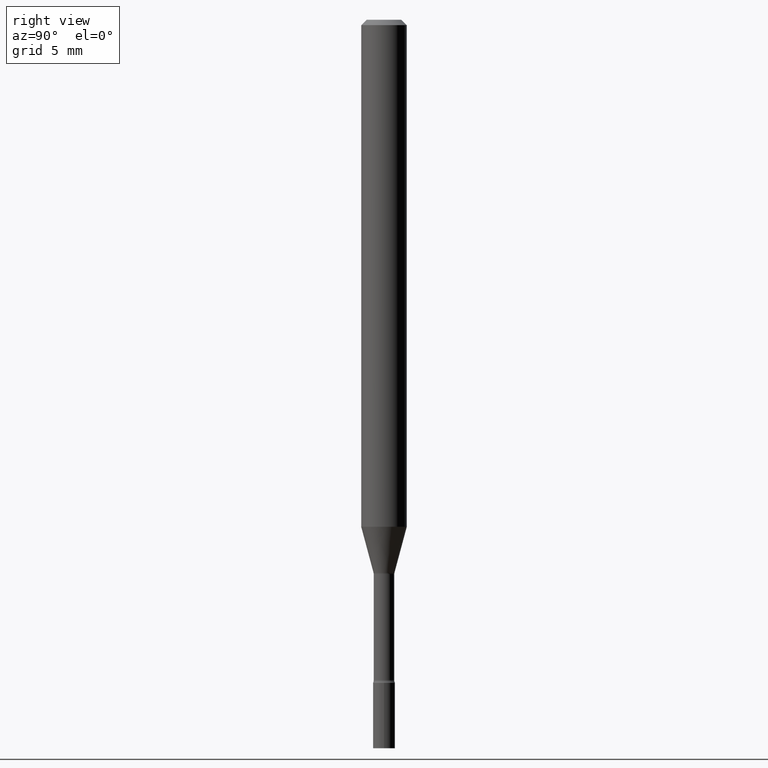
[diagram: clean part render]
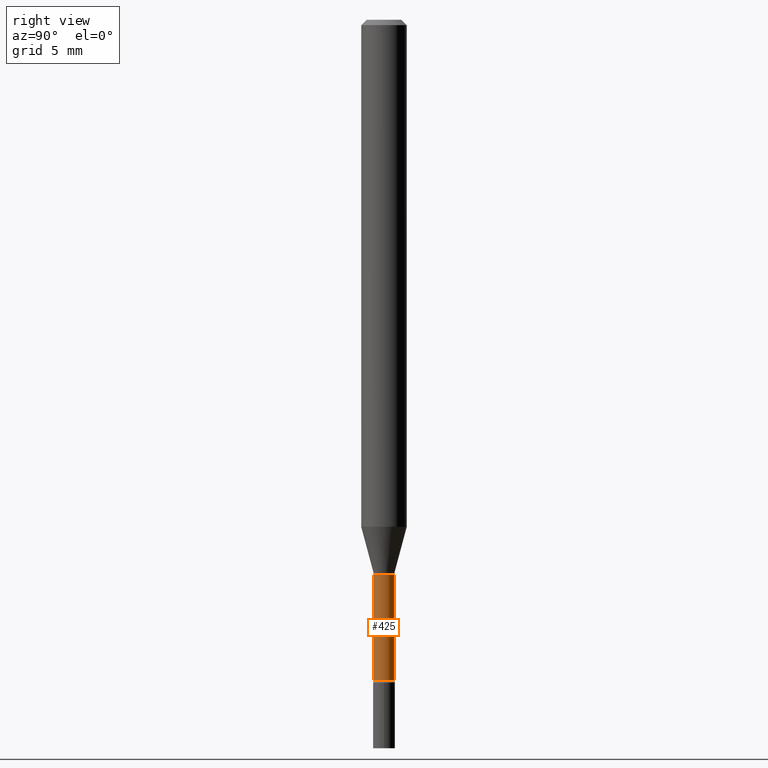
[diagram: same view with one face highlighted and labeled with its STEP entity id]
A machine part, right view. The second image highlights one B-rep face of the part: STEP entity #425.
In plain terms, the highlighted cylindrical surface (edge-blend (fillet) strip) has radius 0.7163 mm, axis along (-0, 0, 1).
Its self-contained STEP definition (entity closure, byte-faithful):
#24 = ORIENTED_EDGE ( 'NONE', *, *, #405, .F. ) ;
#45 = VERTEX_POINT ( 'NONE', #487 ) ;
#89 = ORIENTED_EDGE ( 'NONE', *, *, #368, .T. ) ;
#96 = CIRCLE ( 'NONE', #474, 0.02819999999999994733 ) ;
#116 = CARTESIAN_POINT ( 'NONE',  ( 0.000000000000000000, 0.000000000000000000, 0.000000000000000000 ) ) ;
#118 = DIRECTION ( 'NONE',  ( -2.445383222874086491E-29, 3.491603899015669090E-15, 1.000000000000000000 ) ) ;
#156 = VERTEX_POINT ( 'NONE', #466 ) ;
#160 = FACE_OUTER_BOUND ( 'NONE', #217, .T. ) ;
#169 = DIRECTION ( 'NONE',  ( -2.445383222874086211E-29, 3.491603899015669090E-15, 1.000000000000000000 ) ) ;
#196 = LINE ( 'NONE', #363, #276 ) ;
#203 = CARTESIAN_POINT ( 'NONE',  ( 2.003730514843925967E-16, 0.02819999999999468418, -1.521974787463810985 ) ) ;
#217 = EDGE_LOOP ( 'NONE', ( #409, #89, #345, #24 ) ) ;
#233 = CARTESIAN_POINT ( 'NONE',  ( 4.433175075477450519E-29, -6.329842796730908159E-15, -1.812875394747776925 ) ) ;
#276 = VECTOR ( 'NONE', #169, 39.37007874015748143 ) ;
#279 = DIRECTION ( 'NONE',  ( -2.445383222874086491E-29, 3.491603899015669090E-15, 1.000000000000000000 ) ) ;
#320 = CYLINDRICAL_SURFACE ( 'NONE', #380, 0.02819999999999997162 ) ;
#322 = CARTESIAN_POINT ( 'NONE',  ( 2.003730514843480261E-16, 0.02819999999999997162, -9.846322995224176842E-17 ) ) ;
#323 = VERTEX_POINT ( 'NONE', #435 ) ;
#327 = CARTESIAN_POINT ( 'NONE',  ( 3.721811610901357070E-29, -5.314133102112187367E-15, -1.521974787463810985 ) ) ;
#337 = VERTEX_POINT ( 'NONE', #203 ) ;
#338 = CIRCLE ( 'NONE', #424, 0.02819999999999999590 ) ;
#342 = EDGE_CURVE ( 'NONE', #156, #337, #338, .T. ) ;
#345 = ORIENTED_EDGE ( 'NONE', *, *, #342, .F. ) ;
#358 = DIRECTION ( 'NONE',  ( -2.445383222874086211E-29, 3.491603899015669090E-15, 1.000000000000000000 ) ) ;
#363 = CARTESIAN_POINT ( 'NONE',  ( -1.969195475107524804E-16, -0.02819999999999997162, 9.846322995224176842E-17 ) ) ;
#368 = EDGE_CURVE ( 'NONE', #323, #337, #515, .T. ) ;
#380 = AXIS2_PLACEMENT_3D ( 'NONE', #116, #279, #432 ) ;
#391 = DIRECTION ( 'NONE',  ( -6.982962677686265922E-15, -1.000000000000000000, 0.000000000000000000 ) ) ;
#399 = DIRECTION ( 'NONE',  ( -6.982962677686265922E-15, -1.000000000000000000, 0.000000000000000000 ) ) ;
#400 = EDGE_CURVE ( 'NONE', #45, #323, #96, .T. ) ;
#405 = EDGE_CURVE ( 'NONE', #45, #156, #196, .T. ) ;
#409 = ORIENTED_EDGE ( 'NONE', *, *, #400, .T. ) ;
#424 = AXIS2_PLACEMENT_3D ( 'NONE', #327, #478, #399 ) ;
#425 = ADVANCED_FACE ( 'NONE', ( #160 ), #320, .T. ) ;
#432 = DIRECTION ( 'NONE',  ( -6.982962677686265133E-15, -1.000000000000000000, 3.491603899015669090E-15 ) ) ;
#435 = CARTESIAN_POINT ( 'NONE',  ( 2.067679361062335830E-16, 0.02819999999999361559, -1.812875394747776925 ) ) ;
#465 = VECTOR ( 'NONE', #358, 39.37007874015748143 ) ;
#466 = CARTESIAN_POINT ( 'NONE',  ( -1.969195475107154533E-16, -0.02820000000000531110, -1.521974787463810985 ) ) ;
#474 = AXIS2_PLACEMENT_3D ( 'NONE', #233, #118, #391 ) ;
#478 = DIRECTION ( 'NONE',  ( -2.445383222874086491E-29, 3.491603899015669090E-15, 1.000000000000000000 ) ) ;
#487 = CARTESIAN_POINT ( 'NONE',  ( -1.969195475107079838E-16, -0.02820000000000627560, -1.812875394747776925 ) ) ;
#515 = LINE ( 'NONE', #322, #465 ) ;